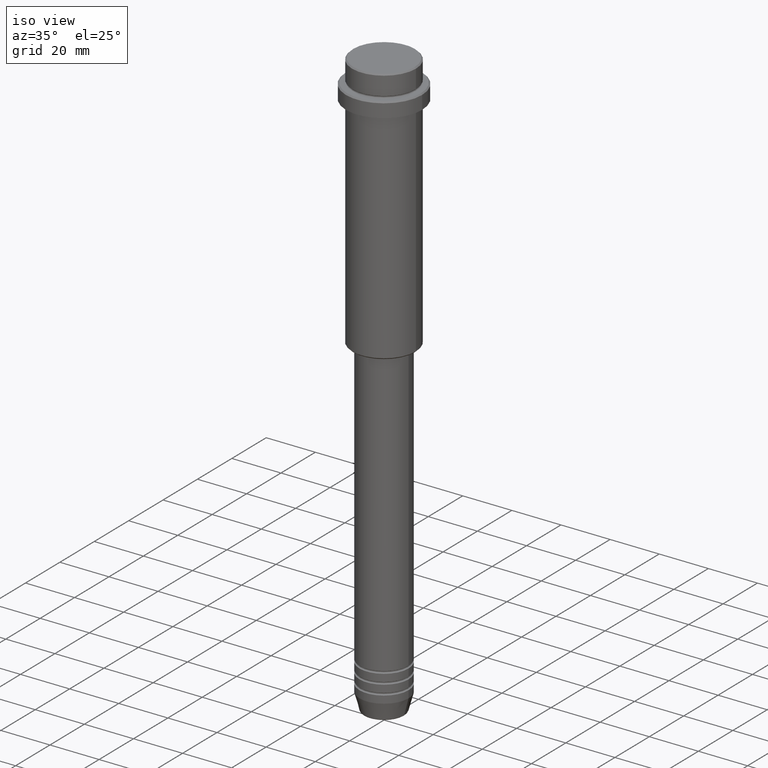
[diagram: clean part render]
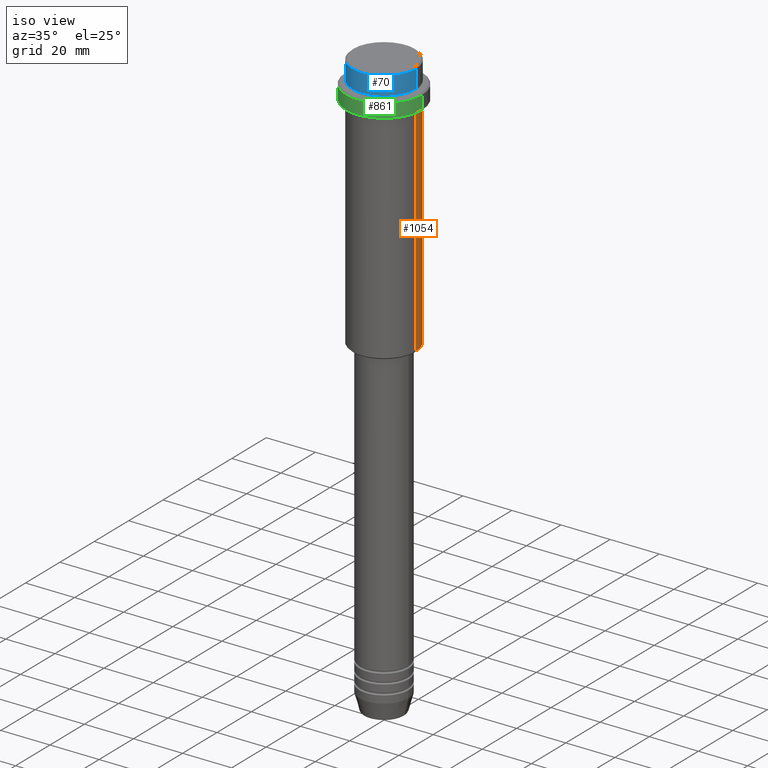
[diagram: same view with three faces highlighted in distinct colors, each labeled with its STEP entity id]
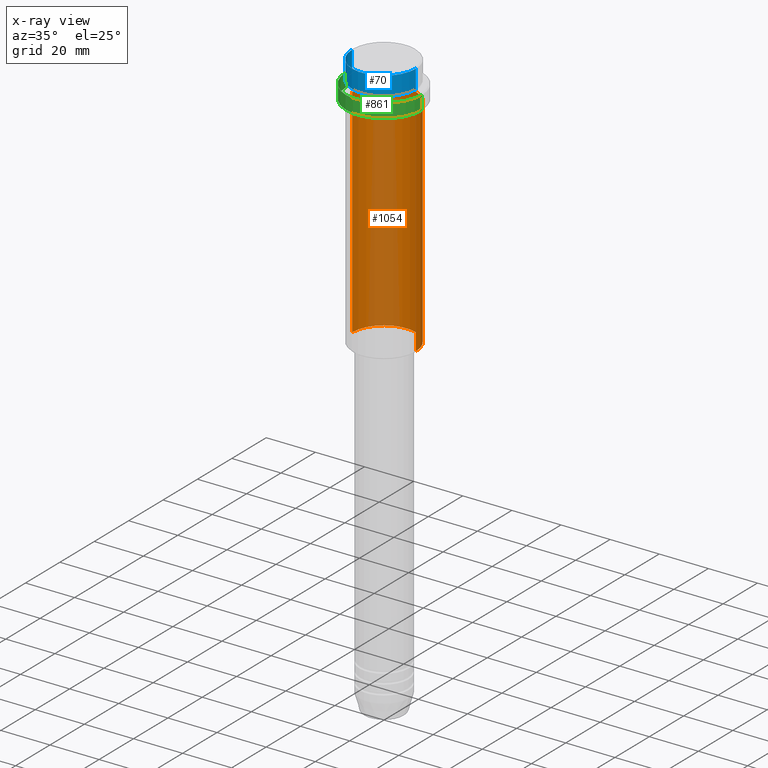
[diagram: x-ray of the same camera — body ghosted, the three highlighted faces saturated]
A machine part, iso view with three faces highlighted in distinct colors.
The next image is the same camera in x-ray (body ghosted, the three faces saturated) — at least one of them is partly hidden behind the body in this view.
Their STEP definitions:

[orange] entity #1054 — the highlighted cylindrical surface (partial cylindrical patch) has radius 13 mm, axis along (-0, -0, 1).
#11 = DIRECTION ( 'NONE',  ( -0.000000000000000000, -0.000000000000000000, 1.000000000000000000 ) ) ;
#21 = CARTESIAN_POINT ( 'NONE',  ( -13.00000000000000000, 1.592040838891559095E-15, 0.000000000000000000 ) ) ;
#36 = ORIENTED_EDGE ( 'NONE', *, *, #555, .T. ) ;
#153 = DIRECTION ( 'NONE',  ( 1.000000000000000000, 0.000000000000000000, 0.000000000000000000 ) ) ;
#154 = VECTOR ( 'NONE', #167, 1000.000000000000000 ) ;
#167 = DIRECTION ( 'NONE',  ( -0.000000000000000000, -0.000000000000000000, 1.000000000000000000 ) ) ;
#197 = CARTESIAN_POINT ( 'NONE',  ( 13.00000000000000000, 0.000000000000000000, -104.5000000000000995 ) ) ;
#216 = CYLINDRICAL_SURFACE ( 'NONE', #371, 13.00000000000000000 ) ;
#224 = CARTESIAN_POINT ( 'NONE',  ( -13.00000000000000000, 1.592040838891559095E-15, -104.5000000000000995 ) ) ;
#288 = VERTEX_POINT ( 'NONE', #795 ) ;
#371 = AXIS2_PLACEMENT_3D ( 'NONE', #1098, #877, #884 ) ;
#378 = LINE ( 'NONE', #1262, #154 ) ;
#379 = EDGE_CURVE ( 'NONE', #428, #834, #378, .T. ) ;
#397 = DIRECTION ( 'NONE',  ( -0.000000000000000000, -0.000000000000000000, 1.000000000000000000 ) ) ;
#428 = VERTEX_POINT ( 'NONE', #197 ) ;
#438 = AXIS2_PLACEMENT_3D ( 'NONE', #703, #397, #153 ) ;
#458 = CIRCLE ( 'NONE', #763, 13.00000000000000000 ) ;
#489 = CARTESIAN_POINT ( 'NONE',  ( 13.00000000000000000, 0.000000000000000000, -16.00000000000000000 ) ) ;
#532 = DIRECTION ( 'NONE',  ( -1.000000000000000000, 0.000000000000000000, 0.000000000000000000 ) ) ;
#539 = EDGE_LOOP ( 'NONE', ( #1170, #36, #1159, #1371 ) ) ;
#555 = EDGE_CURVE ( 'NONE', #1102, #288, #911, .T. ) ;
#577 = CIRCLE ( 'NONE', #438, 13.00000000000000000 ) ;
#703 = CARTESIAN_POINT ( 'NONE',  ( 0.000000000000000000, 0.000000000000000000, -16.00000000000000000 ) ) ;
#712 = EDGE_CURVE ( 'NONE', #834, #288, #577, .T. ) ;
#763 = AXIS2_PLACEMENT_3D ( 'NONE', #1164, #1401, #532 ) ;
#795 = CARTESIAN_POINT ( 'NONE',  ( -13.00000000000000000, 1.592040838891559095E-15, -16.00000000000000000 ) ) ;
#834 = VERTEX_POINT ( 'NONE', #489 ) ;
#877 = DIRECTION ( 'NONE',  ( -0.000000000000000000, -0.000000000000000000, 1.000000000000000000 ) ) ;
#884 = DIRECTION ( 'NONE',  ( 1.000000000000000000, 0.000000000000000000, 0.000000000000000000 ) ) ;
#890 = VECTOR ( 'NONE', #11, 1000.000000000000000 ) ;
#911 = LINE ( 'NONE', #21, #890 ) ;
#948 = EDGE_CURVE ( 'NONE', #428, #1102, #458, .T. ) ;
#994 = FACE_OUTER_BOUND ( 'NONE', #539, .T. ) ;
#1054 = ADVANCED_FACE ( 'NONE', ( #994 ), #216, .T. ) ;
#1098 = CARTESIAN_POINT ( 'NONE',  ( 0.000000000000000000, 0.000000000000000000, 0.000000000000000000 ) ) ;
#1102 = VERTEX_POINT ( 'NONE', #224 ) ;
#1159 = ORIENTED_EDGE ( 'NONE', *, *, #712, .F. ) ;
#1164 = CARTESIAN_POINT ( 'NONE',  ( 0.000000000000000000, 0.000000000000000000, -104.5000000000000995 ) ) ;
#1170 = ORIENTED_EDGE ( 'NONE', *, *, #948, .T. ) ;
#1262 = CARTESIAN_POINT ( 'NONE',  ( 13.00000000000000000, 0.000000000000000000, 0.000000000000000000 ) ) ;
#1371 = ORIENTED_EDGE ( 'NONE', *, *, #379, .F. ) ;
#1401 = DIRECTION ( 'NONE',  ( -0.000000000000000000, -0.000000000000000000, 1.000000000000000000 ) ) ;

[blue] entity #70 — the highlighted cylindrical surface (partial cylindrical patch) has radius 13 mm, axis along (-0, -0, 1).
#7 = CARTESIAN_POINT ( 'NONE',  ( 12.99999999999999822, 0.000000000000000000, -7.999999999999998224 ) ) ;
#52 = AXIS2_PLACEMENT_3D ( 'NONE', #726, #931, #189 ) ;
#57 = CIRCLE ( 'NONE', #737, 12.99999999999999822 ) ;
#70 = ADVANCED_FACE ( 'NONE', ( #1270 ), #300, .T. ) ;
#71 = DIRECTION ( 'NONE',  ( 1.000000000000000000, 0.000000000000000000, 0.000000000000000000 ) ) ;
#135 = EDGE_CURVE ( 'NONE', #1172, #1311, #851, .T. ) ;
#138 = CARTESIAN_POINT ( 'NONE',  ( 0.000000000000000000, 0.000000000000000000, -7.999999999999998224 ) ) ;
#178 = AXIS2_PLACEMENT_3D ( 'NONE', #138, #446, #586 ) ;
#189 = DIRECTION ( 'NONE',  ( 1.000000000000000000, 0.000000000000000000, 0.000000000000000000 ) ) ;
#194 = CARTESIAN_POINT ( 'NONE',  ( 0.000000000000000000, 0.000000000000000000, -0.4999999999999483746 ) ) ;
#223 = LINE ( 'NONE', #363, #1405 ) ;
#232 = EDGE_CURVE ( 'NONE', #1130, #1394, #223, .T. ) ;
#265 = EDGE_LOOP ( 'NONE', ( #353, #564, #739, #298 ) ) ;
#297 = CARTESIAN_POINT ( 'NONE',  ( 12.99999999999999822, 0.000000000000000000, -0.4999999999999483746 ) ) ;
#298 = ORIENTED_EDGE ( 'NONE', *, *, #970, .T. ) ;
#300 = CYLINDRICAL_SURFACE ( 'NONE', #52, 12.99999999999999822 ) ;
#320 = VECTOR ( 'NONE', #402, 1000.000000000000000 ) ;
#353 = ORIENTED_EDGE ( 'NONE', *, *, #135, .F. ) ;
#363 = CARTESIAN_POINT ( 'NONE',  ( 12.99999999999999822, 0.000000000000000000, 0.000000000000000000 ) ) ;
#402 = DIRECTION ( 'NONE',  ( -0.000000000000000000, -0.000000000000000000, 1.000000000000000000 ) ) ;
#446 = DIRECTION ( 'NONE',  ( -0.000000000000000000, -0.000000000000000000, 1.000000000000000000 ) ) ;
#564 = ORIENTED_EDGE ( 'NONE', *, *, #1036, .T. ) ;
#586 = DIRECTION ( 'NONE',  ( 1.000000000000000000, 0.000000000000000000, 0.000000000000000000 ) ) ;
#726 = CARTESIAN_POINT ( 'NONE',  ( 0.000000000000000000, 0.000000000000000000, 0.000000000000000000 ) ) ;
#737 = AXIS2_PLACEMENT_3D ( 'NONE', #194, #1179, #71 ) ;
#739 = ORIENTED_EDGE ( 'NONE', *, *, #232, .T. ) ;
#811 = CARTESIAN_POINT ( 'NONE',  ( -12.99999999999999822, 1.592040838891558898E-15, -7.999999999999998224 ) ) ;
#815 = DIRECTION ( 'NONE',  ( -0.000000000000000000, -0.000000000000000000, 1.000000000000000000 ) ) ;
#851 = LINE ( 'NONE', #1057, #320 ) ;
#931 = DIRECTION ( 'NONE',  ( -0.000000000000000000, -0.000000000000000000, 1.000000000000000000 ) ) ;
#970 = EDGE_CURVE ( 'NONE', #1394, #1311, #57, .T. ) ;
#1036 = EDGE_CURVE ( 'NONE', #1172, #1130, #1320, .T. ) ;
#1057 = CARTESIAN_POINT ( 'NONE',  ( -12.99999999999999822, 1.592040838891558898E-15, 0.000000000000000000 ) ) ;
#1076 = CARTESIAN_POINT ( 'NONE',  ( -12.99999999999999822, 1.592040838891558898E-15, -0.4999999999999483746 ) ) ;
#1130 = VERTEX_POINT ( 'NONE', #7 ) ;
#1172 = VERTEX_POINT ( 'NONE', #811 ) ;
#1179 = DIRECTION ( 'NONE',  ( 0.000000000000000000, 0.000000000000000000, -1.000000000000000000 ) ) ;
#1270 = FACE_OUTER_BOUND ( 'NONE', #265, .T. ) ;
#1311 = VERTEX_POINT ( 'NONE', #1076 ) ;
#1320 = CIRCLE ( 'NONE', #178, 12.99999999999999822 ) ;
#1394 = VERTEX_POINT ( 'NONE', #297 ) ;
#1405 = VECTOR ( 'NONE', #815, 1000.000000000000000 ) ;

[green] entity #861 — the highlighted cylindrical surface (partial cylindrical patch) has radius 15.5 mm, axis along (-0, -0, 1).
#30 = EDGE_CURVE ( 'NONE', #578, #778, #1175, .T. ) ;
#35 = CIRCLE ( 'NONE', #344, 15.50000000000000000 ) ;
#64 = DIRECTION ( 'NONE',  ( 1.000000000000000000, 0.000000000000000000, 0.000000000000000000 ) ) ;
#84 = DIRECTION ( 'NONE',  ( -0.000000000000000000, -0.000000000000000000, 1.000000000000000000 ) ) ;
#91 = CARTESIAN_POINT ( 'NONE',  ( -15.50000000000000000, 1.898202538678397557E-15, 0.000000000000000000 ) ) ;
#112 = CARTESIAN_POINT ( 'NONE',  ( 0.000000000000000000, 0.000000000000000000, -15.00000000000000178 ) ) ;
#126 = AXIS2_PLACEMENT_3D ( 'NONE', #112, #84, #1185 ) ;
#251 = VECTOR ( 'NONE', #862, 1000.000000000000000 ) ;
#344 = AXIS2_PLACEMENT_3D ( 'NONE', #1278, #980, #1388 ) ;
#377 = CARTESIAN_POINT ( 'NONE',  ( 15.50000000000000000, 0.000000000000000000, -15.00000000000000178 ) ) ;
#381 = ORIENTED_EDGE ( 'NONE', *, *, #921, .F. ) ;
#503 = CARTESIAN_POINT ( 'NONE',  ( 15.50000000000000000, 0.000000000000000000, 0.000000000000000000 ) ) ;
#516 = CYLINDRICAL_SURFACE ( 'NONE', #1242, 15.50000000000000000 ) ;
#545 = FACE_OUTER_BOUND ( 'NONE', #1124, .T. ) ;
#578 = VERTEX_POINT ( 'NONE', #1217 ) ;
#617 = CARTESIAN_POINT ( 'NONE',  ( 15.50000000000000000, 0.000000000000000000, -9.500000000000014211 ) ) ;
#652 = CARTESIAN_POINT ( 'NONE',  ( 0.000000000000000000, 0.000000000000000000, 0.000000000000000000 ) ) ;
#729 = LINE ( 'NONE', #503, #984 ) ;
#769 = EDGE_CURVE ( 'NONE', #778, #1322, #729, .T. ) ;
#778 = VERTEX_POINT ( 'NONE', #377 ) ;
#819 = ORIENTED_EDGE ( 'NONE', *, *, #769, .T. ) ;
#835 = LINE ( 'NONE', #91, #251 ) ;
#861 = ADVANCED_FACE ( 'NONE', ( #545 ), #516, .T. ) ;
#862 = DIRECTION ( 'NONE',  ( -0.000000000000000000, -0.000000000000000000, 1.000000000000000000 ) ) ;
#875 = ORIENTED_EDGE ( 'NONE', *, *, #889, .T. ) ;
#889 = EDGE_CURVE ( 'NONE', #1322, #1109, #35, .T. ) ;
#921 = EDGE_CURVE ( 'NONE', #578, #1109, #835, .T. ) ;
#937 = DIRECTION ( 'NONE',  ( -0.000000000000000000, -0.000000000000000000, 1.000000000000000000 ) ) ;
#980 = DIRECTION ( 'NONE',  ( 0.000000000000000000, 0.000000000000000000, -1.000000000000000000 ) ) ;
#982 = ORIENTED_EDGE ( 'NONE', *, *, #30, .T. ) ;
#984 = VECTOR ( 'NONE', #937, 1000.000000000000000 ) ;
#1109 = VERTEX_POINT ( 'NONE', #1301 ) ;
#1124 = EDGE_LOOP ( 'NONE', ( #381, #982, #819, #875 ) ) ;
#1171 = DIRECTION ( 'NONE',  ( -0.000000000000000000, -0.000000000000000000, 1.000000000000000000 ) ) ;
#1175 = CIRCLE ( 'NONE', #126, 15.50000000000000000 ) ;
#1185 = DIRECTION ( 'NONE',  ( 1.000000000000000000, 0.000000000000000000, 0.000000000000000000 ) ) ;
#1217 = CARTESIAN_POINT ( 'NONE',  ( -15.50000000000000000, 1.898202538678397557E-15, -15.00000000000000178 ) ) ;
#1242 = AXIS2_PLACEMENT_3D ( 'NONE', #652, #1171, #64 ) ;
#1278 = CARTESIAN_POINT ( 'NONE',  ( 0.000000000000000000, 0.000000000000000000, -9.500000000000014211 ) ) ;
#1301 = CARTESIAN_POINT ( 'NONE',  ( -15.50000000000000000, 1.898202538678397557E-15, -9.500000000000014211 ) ) ;
#1322 = VERTEX_POINT ( 'NONE', #617 ) ;
#1388 = DIRECTION ( 'NONE',  ( 1.000000000000000000, 0.000000000000000000, 0.000000000000000000 ) ) ;